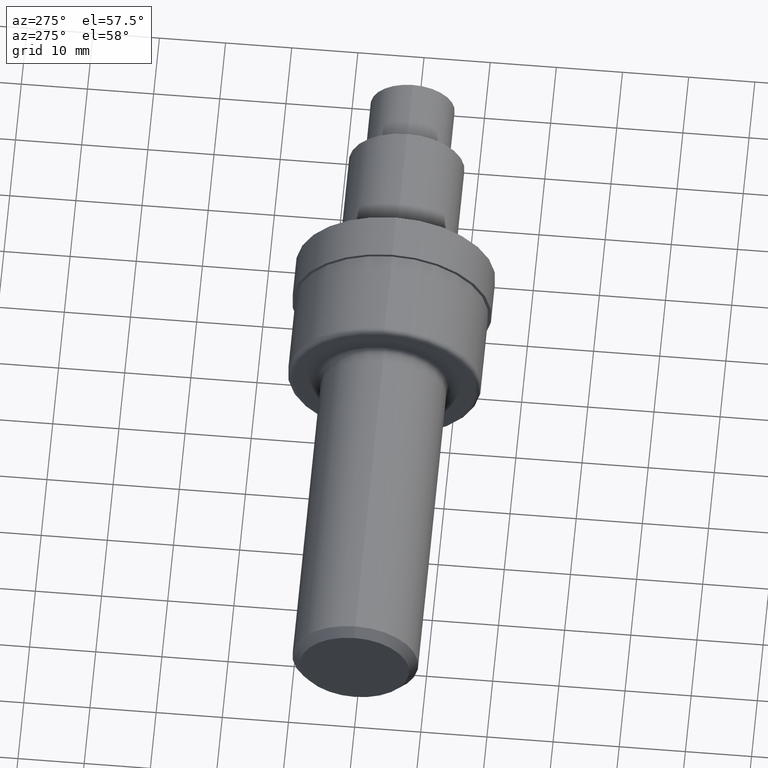
[diagram: clean part render]
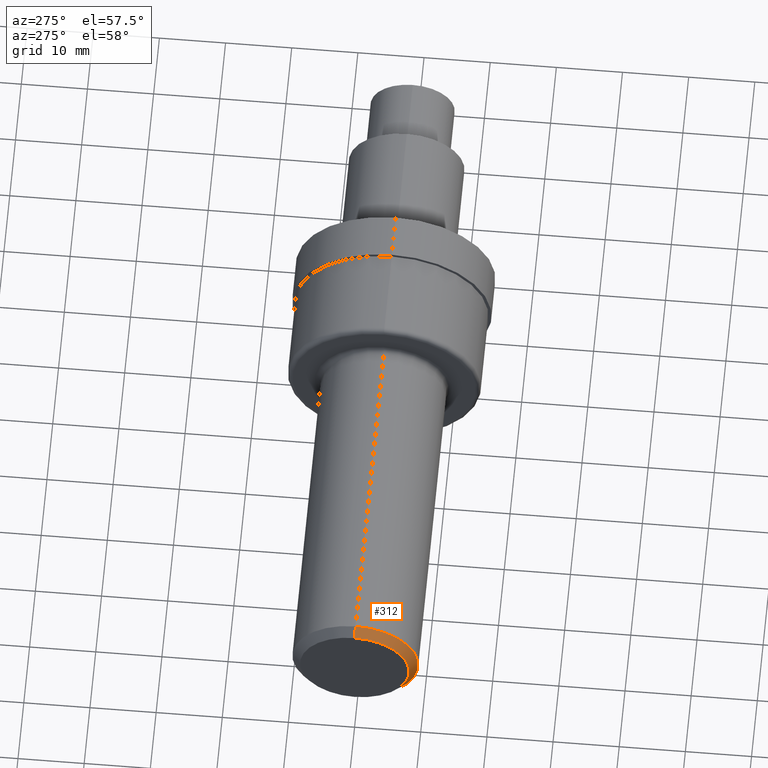
[diagram: same view with one face highlighted and labeled with its STEP entity id]
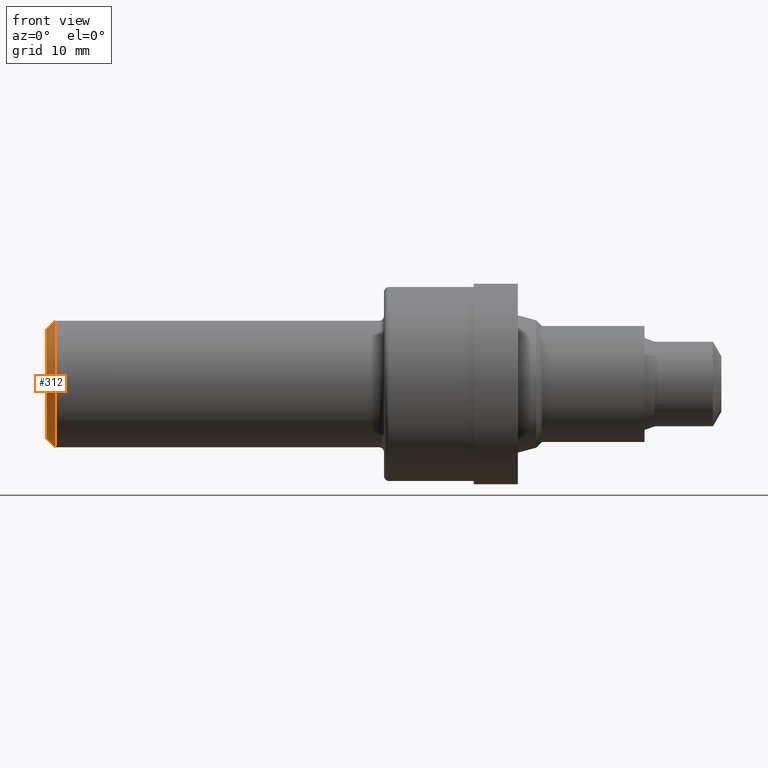
[diagram: same view with one face highlighted and labeled with its STEP entity id]
A machine part, auxiliary view. The second image highlights one B-rep face of the part: STEP entity #312.
A second angle (front view) of the same face is appended — the face is thin or edge-on in the first view.
In plain terms, the highlighted conical surface has half-angle 45 deg.
Its self-contained STEP definition (entity closure, byte-faithful):
#15 = DIRECTION ( 'NONE',  ( 0.0000000000000000000, 0.0000000000000000000, 1.000000000000000000 ) ) ;
#16 = VERTEX_POINT ( 'NONE', #355 ) ;
#23 = CARTESIAN_POINT ( 'NONE',  ( 0.0000000000000000000, 0.0000000000000000000, -0.3248500000000001386 ) ) ;
#69 = VERTEX_POINT ( 'NONE', #98 ) ;
#82 = VERTEX_POINT ( 'NONE', #644 ) ;
#98 = CARTESIAN_POINT ( 'NONE',  ( 0.05000000000000000278, 4.590588526603853748E-17, 0.3748500000000000165 ) ) ;
#104 = AXIS2_PLACEMENT_3D ( 'NONE', #823, #379, #200 ) ;
#113 = VECTOR ( 'NONE', #747, 39.37007874015748854 ) ;
#124 = VERTEX_POINT ( 'NONE', #23 ) ;
#141 = ORIENTED_EDGE ( 'NONE', *, *, #365, .T. ) ;
#149 = CONICAL_SURFACE ( 'NONE', #677, 0.3748500000000000165, 0.7853981633974470578 ) ;
#152 = CARTESIAN_POINT ( 'NONE',  ( 0.05000000000000000278, 0.0000000000000000000, 0.0000000000000000000 ) ) ;
#174 = CIRCLE ( 'NONE', #104, 0.3248500000000001386 ) ;
#179 = ORIENTED_EDGE ( 'NONE', *, *, #570, .T. ) ;
#200 = DIRECTION ( 'NONE',  ( 0.0000000000000000000, 0.0000000000000000000, 1.000000000000000000 ) ) ;
#211 = LINE ( 'NONE', #216, #635 ) ;
#216 = CARTESIAN_POINT ( 'NONE',  ( 0.05000000000000000278, 0.0000000000000000000, -0.3748500000000000165 ) ) ;
#309 = ORIENTED_EDGE ( 'NONE', *, *, #695, .F. ) ;
#312 = ADVANCED_FACE ( 'NONE', ( #662 ), #149, .T. ) ;
#347 = EDGE_LOOP ( 'NONE', ( #568, #309, #141, #179 ) ) ;
#355 = CARTESIAN_POINT ( 'NONE',  ( 0.0000000000000000000, 4.284426826817016124E-17, 0.3248500000000001386 ) ) ;
#365 = EDGE_CURVE ( 'NONE', #124, #82, #211, .T. ) ;
#379 = DIRECTION ( 'NONE',  ( -1.000000000000000000, -0.0000000000000000000, -0.0000000000000000000 ) ) ;
#418 = DIRECTION ( 'NONE',  ( 0.7071067811865483499, 0.0000000000000000000, -0.7071067811865465735 ) ) ;
#460 = DIRECTION ( 'NONE',  ( -1.000000000000000000, -0.0000000000000000000, -0.0000000000000000000 ) ) ;
#469 = DIRECTION ( 'NONE',  ( 0.0000000000000000000, 0.0000000000000000000, -1.000000000000000000 ) ) ;
#493 = EDGE_CURVE ( 'NONE', #16, #69, #712, .T. ) ;
#568 = ORIENTED_EDGE ( 'NONE', *, *, #493, .F. ) ;
#570 = EDGE_CURVE ( 'NONE', #82, #69, #725, .T. ) ;
#607 = CARTESIAN_POINT ( 'NONE',  ( 0.05000000000000000278, 4.590588526603853748E-17, 0.3748500000000000165 ) ) ;
#635 = VECTOR ( 'NONE', #418, 39.37007874015748854 ) ;
#640 = DIRECTION ( 'NONE',  ( 1.000000000000000000, 0.0000000000000000000, 0.0000000000000000000 ) ) ;
#644 = CARTESIAN_POINT ( 'NONE',  ( 0.05000000000000000278, 0.0000000000000000000, -0.3748500000000000165 ) ) ;
#662 = FACE_OUTER_BOUND ( 'NONE', #347, .T. ) ;
#677 = AXIS2_PLACEMENT_3D ( 'NONE', #713, #640, #469 ) ;
#695 = EDGE_CURVE ( 'NONE', #124, #16, #174, .T. ) ;
#712 = LINE ( 'NONE', #607, #113 ) ;
#713 = CARTESIAN_POINT ( 'NONE',  ( 0.05000000000000000278, 0.0000000000000000000, 0.0000000000000000000 ) ) ;
#725 = CIRCLE ( 'NONE', #756, 0.3748500000000000165 ) ;
#747 = DIRECTION ( 'NONE',  ( 0.7071067811865483499, 8.659560562354922997E-17, 0.7071067811865465735 ) ) ;
#756 = AXIS2_PLACEMENT_3D ( 'NONE', #152, #460, #15 ) ;
#823 = CARTESIAN_POINT ( 'NONE',  ( 0.0000000000000000000, 0.0000000000000000000, 0.0000000000000000000 ) ) ;